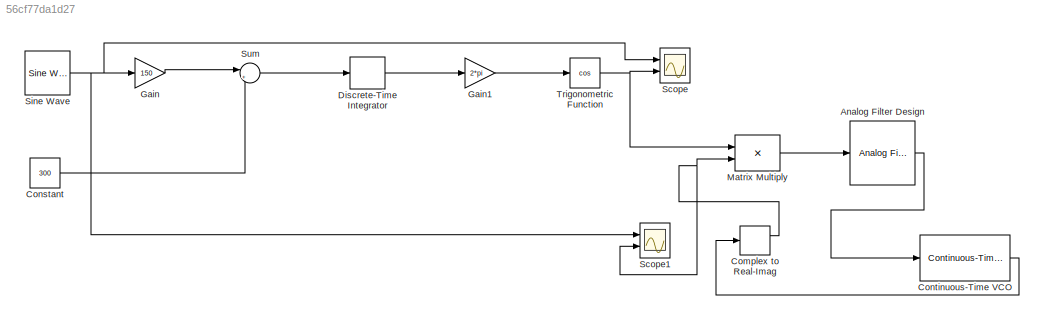
MODEL slx_56cf77da1d27
KIND model
CONFIG AbsTol = auto
CONFIG EnableMultiTasking = off
CONFIG FixedStep = auto
CONFIG MaxStep = auto
CONFIG MinStep = auto
CONFIG RelTol = 1e-3
CONFIG SampleTimeConstraint = Unconstrained
CONFIG Solver = VariableStepAuto
CONFIG SolverName = VariableStepAuto
CONFIG StartTime = 0.0
CONFIG StopTime = 1
BLOCK [Reference] Analog Filter Design  REF=dsparch4/Analog
Filter Design
  Ports = [1, 1]
  SourceBlock = dsparch4/Analog\nFilter Design
  SourceProductBaseCode = DS
  SourceProductName = DSP System Toolbox
  SourceType = Analog Filter Design
BLOCK [ComplexToRealImag] Complex to Real-Imag
  Ports = [1, 2]
BLOCK [Constant] Constant
  Value = 300
BLOCK [Reference] Continuous-Time VCO  REF=commsynccomp2/Continuous-Time
VCO
  Ports = [1, 1]
  SourceBlock = commsynccomp2/Continuous-Time\nVCO
  SourceProductBaseCode = CM
  SourceProductName = Communications System Toolbox
  SourceType = Continuous-Time VCO
BLOCK [DiscreteIntegrator] Discrete-Time Integrator
  ICPrevOutput = DiscIntNeverNeededParam
  ICPrevScaledInput = DiscIntNeverNeededParam
  InitialConditionSetting = Auto
  Ports = [1, 1]
  SampleTime = 1/98000
BLOCK [Gain] Gain
  Gain = 150
  OutDataTypeStr = Inherit: Inherit via internal rule
  ParamDataTypeStr = Inherit: Inherit via internal rule
  SaturateOnIntegerOverflow = off
BLOCK [Gain] Gain1
  Gain = 2*pi
  OutDataTypeStr = Inherit: Inherit via internal rule
  ParamDataTypeStr = Inherit: Inherit via internal rule
  SaturateOnIntegerOverflow = off
BLOCK [Product] Matrix Multiply
  InputSameDT = off
  Multiplication = Matrix(*)
  OutDataTypeStr = Inherit: Inherit via internal rule
  Ports = [2, 1]
  RndMeth = Floor
  SaturateOnIntegerOverflow = off
BLOCK [Scope] Scope
  Floating = off
  NumInputPorts = 2
  Ports = [2]
  ScopeSpecificationString = Simulink.scopes.TimeScopeBlockCfg('CurrentConfiguration', extmgr.ConfigurationSet(extmgr.Configuration('Core','General UI',true),extmgr.Configuration('Core','Source UI',true),extmgr.Configuration('Sources','WiredSimulink',true),extmgr.Configuration('Visuals','Time Domain',true,'SerializedDisplays',{struct('MinYLimReal','-2.5','MaxYLimReal','2.5','YLabelReal','','MinYLimMag','0.00000','MaxYLimMag',...<+1969ch>
BLOCK [Scope] Scope1
  Floating = off
  NumInputPorts = 2
  Ports = [2]
  ScopeSpecificationString = Simulink.scopes.TimeScopeBlockCfg('CurrentConfiguration', extmgr.ConfigurationSet(extmgr.Configuration('Core','General UI',true),extmgr.Configuration('Core','Source UI',true),extmgr.Configuration('Sources','WiredSimulink',true,'DataLoggingVariableName','ScopeData1'),extmgr.Configuration('Visuals','Time Domain',true,'SerializedDisplays',{struct('MinYLimReal','-2.5','MaxYLimReal','2.5','YLabelReal',...<+2008ch>
BLOCK [Reference] Sine Wave  REF=dspsrcs4/Sine Wave
  Ports = [0, 1]
  SourceBlock = dspsrcs4/Sine Wave
  SourceProductBaseCode = DS
  SourceProductName = DSP System Toolbox
  SourceType = Sine Wave
BLOCK [Sum] Sum
  IconShape = round
  InputSameDT = off
  Inputs = |++
  OutDataTypeStr = Inherit: Inherit via internal rule
  Ports = [2, 1]
  SaturateOnIntegerOverflow = off
BLOCK [Trigonometry] Trigonometric Function
  Operator = cos
  Ports = [1, 1]
LINE Analog Filter Design:1 -> Continuous-Time VCO:1
NET Complex to Real-Imag:1 -> Matrix Multiply:2, Scope1:2
LINE Constant:1 -> Sum:2
LINE Continuous-Time VCO:1 -> Complex to Real-Imag:1
LINE Discrete-Time Integrator:1 -> Gain1:1
LINE Gain1:1 -> Trigonometric Function:1
LINE Gain:1 -> Sum:1
LINE Matrix Multiply:1 -> Analog Filter Design:1
NET Sine Wave:1 -> Gain:1, Scope1:1, Scope:1
LINE Sum:1 -> Discrete-Time Integrator:1
NET Trigonometric Function:1 -> Matrix Multiply:1, Scope:2
note: NET lines group one-source signal fan-out (src -> all destinations, sorted); 1:1 wires keep LINE
